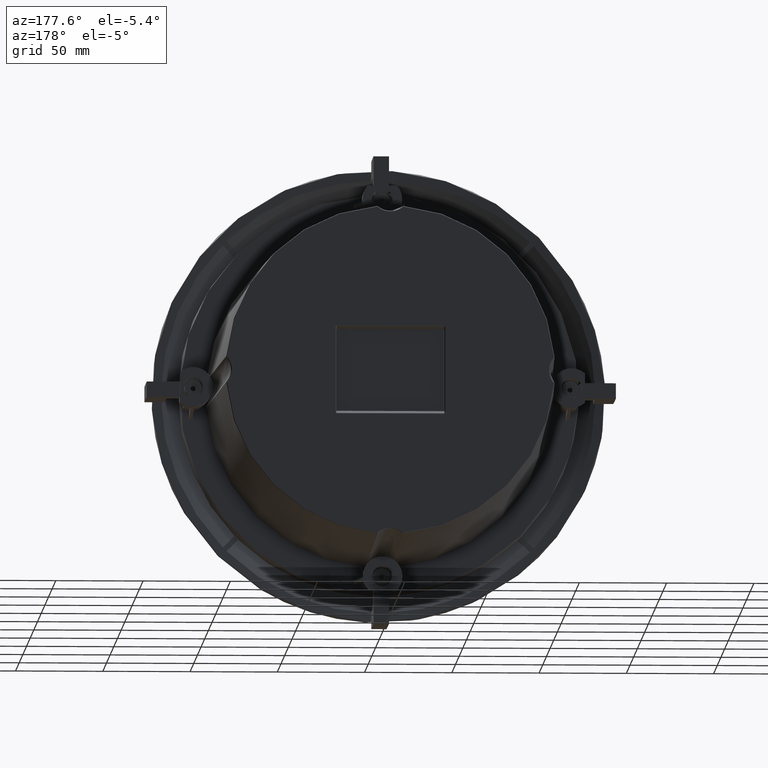
[diagram: clean part render]
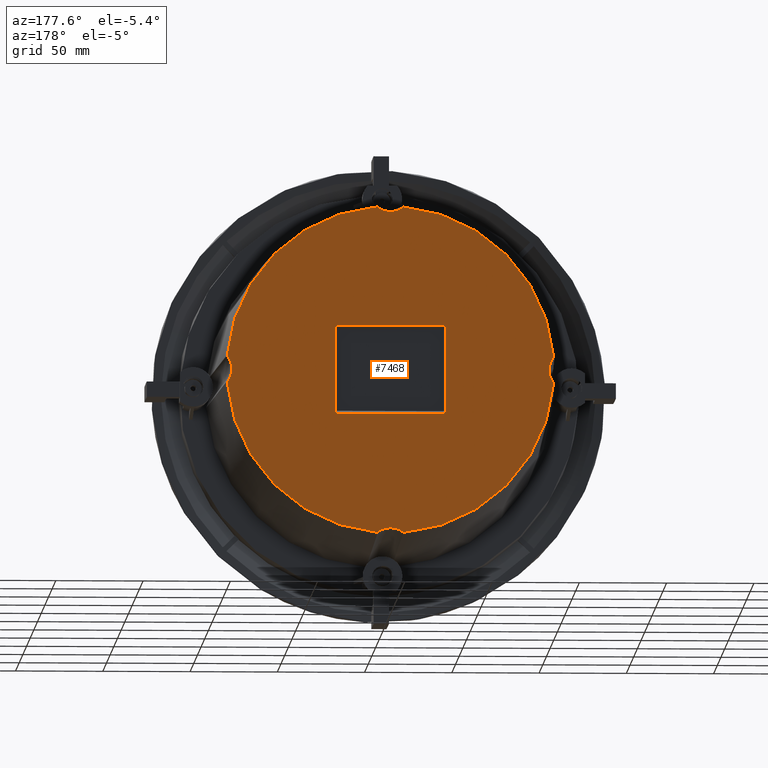
[diagram: same view with one face highlighted and labeled with its STEP entity id]
A machine part, auxiliary view. The second image highlights one B-rep face of the part: STEP entity #7468.
In plain terms, the highlighted planar face has unit normal (0, -1, 0).
Its self-contained STEP definition (entity closure, byte-faithful):
#197 = AXIS2_PLACEMENT_3D ( 'NONE', #6857, #18979, #10197 ) ;
#219 = CARTESIAN_POINT ( 'NONE',  ( -91.46539387544925148, 153.2000000000000739, -3.681440109933228122 ) ) ;
#427 = CARTESIAN_POINT ( 'NONE',  ( -92.77616737989194462, 153.1999999999999886, -6.432967408397320064 ) ) ;
#474 = CARTESIAN_POINT ( 'NONE',  ( 92.77616737988867612, 153.1999999999999886, 6.432967408398480025 ) ) ;
#540 = CARTESIAN_POINT ( 'NONE',  ( -93.36783217068743568, 153.2000000000000739, -7.271163528598670212 ) ) ;
#637 = CARTESIAN_POINT ( 'NONE',  ( -91.69059559155884642, 153.1999999999999886, 4.310998620416925498 ) ) ;
#672 = VERTEX_POINT ( 'NONE', #16595 ) ;
#762 = ORIENTED_EDGE ( 'NONE', *, *, #15835, .T. ) ;
#789 = CARTESIAN_POINT ( 'NONE',  ( -31.50000000000000000, 153.1999999999999886, 24.84591215304066836 ) ) ;
#862 = CARTESIAN_POINT ( 'NONE',  ( -93.15034997849915044, 153.1999999999999886, 7.005205598205839657 ) ) ;
#917 = CARTESIAN_POINT ( 'NONE',  ( -31.50000000000000711, 153.1999999999999886, -24.84591215304063638 ) ) ;
#953 = FACE_OUTER_BOUND ( 'NONE', #9231, .T. ) ;
#1071 = CARTESIAN_POINT ( 'NONE',  ( -5.260975928063964524, 153.2000000000000739, 92.09479735790252164 ) ) ;
#1259 = CARTESIAN_POINT ( 'NONE',  ( -6.443086712599098931, 153.2000000000000171, -92.76555303458462731 ) ) ;
#1384 = CARTESIAN_POINT ( 'NONE',  ( 93.58510959253142403, 153.1999999999999886, -7.536871046318520229 ) ) ;
#1419 = CARTESIAN_POINT ( 'NONE',  ( 90.96403128664297810, 153.2000000000000455, -1.363396200185605478 ) ) ;
#1472 = CARTESIAN_POINT ( 'NONE',  ( -93.58510959253139561, 153.1999999999999886, 7.536871046318957212 ) ) ;
#1527 = CARTESIAN_POINT ( 'NONE',  ( -7.536871046321066636, 153.1999999999999886, 93.58510959253106876 ) ) ;
#1704 = CARTESIAN_POINT ( 'NONE',  ( 31.08578643762690774, 153.1999999999999886, 25.30901699437495722 ) ) ;
#1920 = CARTESIAN_POINT ( 'NONE',  ( -92.09479735790532118, 153.1999999999999318, -5.260975928059998807 ) ) ;
#2387 = VERTEX_POINT ( 'NONE', #6798 ) ;
#2458 = VECTOR ( 'NONE', #4995, 1000.000000000000000 ) ;
#2564 = CARTESIAN_POINT ( 'NONE',  ( -91.82025499888871423, 153.1999999999999886, 4.629283016224395197 ) ) ;
#2568 = CARTESIAN_POINT ( 'NONE',  ( -93.58510959253140982, 153.1999999999999886, -7.536871046318957212 ) ) ;
#2670 = CARTESIAN_POINT ( 'NONE',  ( -92.76555303458583523, 153.1999999999999034, 6.443086712598468324 ) ) ;
#2949 = CARTESIAN_POINT ( 'NONE',  ( 5.260975928060313223, 153.2000000000000455, -92.09479735790202426 ) ) ;
#2965 = DIRECTION ( 'NONE',  ( 1.000000000000000000, 0.0000000000000000000, -9.893519695248395276E-17 ) ) ;
#2981 = CARTESIAN_POINT ( 'NONE',  ( 31.50000000000000355, 153.1999999999999886, -24.84591215304063638 ) ) ;
#2982 =( BOUNDED_CURVE ( )  B_SPLINE_CURVE ( 3, ( #4971, #1704, #3155, #20371 ),
 .UNSPECIFIED., .F., .T. ) 
 B_SPLINE_CURVE_WITH_KNOTS ( ( 4, 4 ),
 ( 0.0000000000000000000, 1.570796326794896558 ),
 .UNSPECIFIED. ) 
 CURVE ( )  GEOMETRIC_REPRESENTATION_ITEM ( )  RATIONAL_B_SPLINE_CURVE ( ( 1.000000000000000000, 0.8047378541243649375, 0.8047378541243649375, 1.000000000000000000 ) ) 
 REPRESENTATION_ITEM ( '' )  );
#2993 = CARTESIAN_POINT ( 'NONE',  ( -6.432967408400803500, 153.2000000000000455, 92.77616737988925877 ) ) ;
#3056 = CARTESIAN_POINT ( 'NONE',  ( 1.359038829745077726, 153.2000000000000455, -90.94906513824362548 ) ) ;
#3110 =( BOUNDED_CURVE ( )  B_SPLINE_CURVE ( 3, ( #6366, #10985, #917, #19623 ),
 .UNSPECIFIED., .F., .T. ) 
 B_SPLINE_CURVE_WITH_KNOTS ( ( 4, 4 ),
 ( 0.0000000000000000000, 1.570796326794896558 ),
 .UNSPECIFIED. ) 
 CURVE ( )  GEOMETRIC_REPRESENTATION_ITEM ( )  RATIONAL_B_SPLINE_CURVE ( ( 1.000000000000000000, 0.8047378541243649375, 0.8047378541243649375, 1.000000000000000000 ) ) 
 REPRESENTATION_ITEM ( '' )  );
#3155 = CARTESIAN_POINT ( 'NONE',  ( 31.50000000000000355, 153.1999999999999886, 24.84591215304066125 ) ) ;
#3159 = ORIENTED_EDGE ( 'NONE', *, *, #21268, .F. ) ;
#3261 = ORIENTED_EDGE ( 'NONE', *, *, #18969, .F. ) ;
#3271 = DIRECTION ( 'NONE',  ( -0.0000000000000000000, 1.000000000000000000, -0.0000000000000000000 ) ) ;
#3274 = CARTESIAN_POINT ( 'NONE',  ( 3.352165217724997870, 153.2000000000000171, -91.36373279981647499 ) ) ;
#3473 = CARTESIAN_POINT ( 'NONE',  ( -92.59629297434011619, 153.1999999999999886, -6.144880924089963337 ) ) ;
#3511 = EDGE_CURVE ( 'NONE', #5568, #10184, #6877, .T. ) ;
#3633 = LINE ( 'NONE', #11884, #2458 ) ;
#3700 = CARTESIAN_POINT ( 'NONE',  ( -91.12013762771064762, 153.1999999999999318, -2.360600208167746406 ) ) ;
#3747 = CARTESIAN_POINT ( 'NONE',  ( 93.58510959253142403, 153.1999999999999886, -7.536871046318520229 ) ) ;
#3808 = CARTESIAN_POINT ( 'NONE',  ( -90.96403128664925930, 153.1999999999999318, 1.363396200187846130 ) ) ;
#4582 = CARTESIAN_POINT ( 'NONE',  ( 7.536871046316185208, 153.1999999999999886, -93.58510959253142403 ) ) ;
#4597 = VERTEX_POINT ( 'NONE', #12790 ) ;
#4677 = AXIS2_PLACEMENT_3D ( 'NONE', #21009, #13962, #17407 ) ;
#4680 = CARTESIAN_POINT ( 'NONE',  ( -4.645709302369996685, 153.1999999999999886, 91.81092058149489787 ) ) ;
#4792 = CARTESIAN_POINT ( 'NONE',  ( -7.536871046316142575, 153.1999999999999886, -93.58510959253162298 ) ) ;
#4794 = CARTESIAN_POINT ( 'NONE',  ( 30.50000000000000355, 153.1999999999999886, -25.30901699437493590 ) ) ;
#4877 = CARTESIAN_POINT ( 'NONE',  ( 2.692485490587008368, 153.2000000000000171, -91.19144314204557134 ) ) ;
#4971 = CARTESIAN_POINT ( 'NONE',  ( 30.50000000000000000, 153.1999999999999886, 25.30901699437495722 ) ) ;
#4995 = DIRECTION ( 'NONE',  ( -1.000000000000000000, -0.0000000000000000000, 9.893519695248395276E-17 ) ) ;
#5019 = CARTESIAN_POINT ( 'NONE',  ( -3.352165217727373303, 153.1999999999999034, 91.36373279981899032 ) ) ;
#5031 = CARTESIAN_POINT ( 'NONE',  ( 92.59629297433636452, 153.2000000000000739, 6.144880924091374652 ) ) ;
#5050 = EDGE_CURVE ( 'NONE', #4597, #17335, #20559, .T. ) ;
#5097 = CARTESIAN_POINT ( 'NONE',  ( -7.005205598204589990, 153.1999999999999886, -93.15034997849802778 ) ) ;
#5418 = EDGE_LOOP ( 'NONE', ( #9335, #5700, #3261, #762, #3159, #18602, #16505, #21931 ) ) ;
#5458 = CARTESIAN_POINT ( 'NONE',  ( 91.17798814047417011, 153.2000000000000171, -2.697493732450597204 ) ) ;
#5494 = CARTESIAN_POINT ( 'NONE',  ( -31.50000000000001421, 153.1999999999999886, -24.99999999999998934 ) ) ;
#5515 = CARTESIAN_POINT ( 'NONE',  ( -90.90635966444361316, 153.1999999999999886, 0.6854634291690130388 ) ) ;
#5568 = VERTEX_POINT ( 'NONE', #15235 ) ;
#5638 = CARTESIAN_POINT ( 'NONE',  ( -91.17798814048003919, 153.1999999999999886, 2.697493732449655734 ) ) ;
#5700 = ORIENTED_EDGE ( 'NONE', *, *, #21103, .T. ) ;
#5703 = EDGE_CURVE ( 'NONE', #672, #4597, #11518, .T. ) ;
#5896 = ORIENTED_EDGE ( 'NONE', *, *, #5703, .T. ) ;
#6366 = CARTESIAN_POINT ( 'NONE',  ( -30.50000000000001421, 153.1999999999999886, -25.30901699437492880 ) ) ;
#6367 = CARTESIAN_POINT ( 'NONE',  ( 0.0000000000000000000, 153.1999999999999886, 1.283914725491116015E-14 ) ) ;
#6410 = CARTESIAN_POINT ( 'NONE',  ( -0.6835133497568752770, 153.1999999999999034, 90.89173487425982501 ) ) ;
#6478 = AXIS2_PLACEMENT_3D ( 'NONE', #21000, #7445, #8869 ) ;
#6574 = B_SPLINE_CURVE_WITH_KNOTS ( 'NONE', 3,
 ( #13682, #18613, #11519, #20275, #18390, #2949, #8494, #8377, #3274, #4877, #20381, #3056, #15120, #21944, #6600, #15352, #11759, #9854, #10176, #18844, #20491, #10063, #16691, #1259, #5097, #16804 ),
 .UNSPECIFIED., .F., .F.,
 ( 4, 2, 2, 2, 2, 2, 2, 2, 2, 2, 2, 2, 4 ),
 ( 1.332917992112502392E-16, 0.001029465366462058856, 0.002058930732923984139, 0.004117861465847837306, 0.005147326832309771262, 0.006176792198771704351, 0.008235722931695563589, 0.009265188298157490607, 0.01029465366461942109, 0.01235358439754327860, 0.01338304976400520908, 0.01441251513046713784, 0.01647144586339101616 ),
 .UNSPECIFIED. ) ;
#6600 = CARTESIAN_POINT ( 'NONE',  ( -0.6854634291648693534, 153.2000000000000739, -90.90635966443979044 ) ) ;
#6651 = CARTESIAN_POINT ( 'NONE',  ( 91.81092058149191359, 153.2000000000000455, 4.645709302368325133 ) ) ;
#6663 = CARTESIAN_POINT ( 'NONE',  ( 31.50000000000000711, 153.1999999999999886, 25.00000000000001066 ) ) ;
#6798 = CARTESIAN_POINT ( 'NONE',  ( -7.536871046321066636, 153.1999999999999886, 93.58510959253106876 ) ) ;
#6857 = CARTESIAN_POINT ( 'NONE',  ( 0.0000000000000000000, 153.1999999999999886, 1.283914725491116015E-14 ) ) ;
#6877 =( BOUNDED_CURVE ( )  B_SPLINE_CURVE ( 3, ( #8944, #789, #14134, #15794 ),
 .UNSPECIFIED., .F., .T. ) 
 B_SPLINE_CURVE_WITH_KNOTS ( ( 4, 4 ),
 ( 1.570796326794893449, 3.141592653589793116 ),
 .UNSPECIFIED. ) 
 CURVE ( )  GEOMETRIC_REPRESENTATION_ITEM ( )  RATIONAL_B_SPLINE_CURVE ( ( 1.000000000000000000, 0.8047378541243643824, 0.8047378541243643824, 1.000000000000000000 ) ) 
 REPRESENTATION_ITEM ( '' )  );
#6879 = EDGE_CURVE ( 'NONE', #12620, #7544, #6574, .T. ) ;
#7071 = VECTOR ( 'NONE', #18335, 1000.000000000000000 ) ;
#7181 = CARTESIAN_POINT ( 'NONE',  ( 91.82025499888693787, 153.1999999999999886, -4.629283016234096770 ) ) ;
#7218 = LINE ( 'NONE', #5494, #18772 ) ;
#7226 = ORIENTED_EDGE ( 'NONE', *, *, #18039, .T. ) ;
#7275 = CARTESIAN_POINT ( 'NONE',  ( 0.0000000000000000000, 153.1999999999999886, 1.283914725491116015E-14 ) ) ;
#7406 = CARTESIAN_POINT ( 'NONE',  ( 92.09479735790048949, 153.2000000000000171, 5.260975928062033624 ) ) ;
#7445 = DIRECTION ( 'NONE',  ( -0.0000000000000000000, 1.000000000000000000, -0.0000000000000000000 ) ) ;
#7468 = ADVANCED_FACE ( 'NONE', ( #953, #11343 ), #7959, .F. ) ;
#7544 = VERTEX_POINT ( 'NONE', #4792 ) ;
#7552 = CIRCLE ( 'NONE', #6478, 93.88810980425007813 ) ;
#7959 = PLANE ( 'NONE',  #197 ) ;
#7970 = CARTESIAN_POINT ( 'NONE',  ( 7.536871046321052425, 153.1999999999999886, 93.58510959253121086 ) ) ;
#8076 = CARTESIAN_POINT ( 'NONE',  ( 30.50000000000000355, 153.1999999999999886, -25.30901699437493590 ) ) ;
#8098 = CARTESIAN_POINT ( 'NONE',  ( -31.50000000000001421, 153.1999999999999886, -24.19098300562503567 ) ) ;
#8195 = CARTESIAN_POINT ( 'NONE',  ( 1.363396200184100904, 153.1999999999999034, 90.96403128664883297 ) ) ;
#8377 = CARTESIAN_POINT ( 'NONE',  ( 3.681440109935348648, 153.2000000000000171, -91.46539387544635247 ) ) ;
#8415 = CARTESIAN_POINT ( 'NONE',  ( -3.681440109937941685, 153.2000000000000455, 91.46539387544859778 ) ) ;
#8422 = CARTESIAN_POINT ( 'NONE',  ( 93.16169503917225825, 153.1999999999999602, 6.995857624617297432 ) ) ;
#8494 = CARTESIAN_POINT ( 'NONE',  ( 4.645709302366810789, 153.2000000000000171, -91.81092058149368995 ) ) ;
#8797 = CARTESIAN_POINT ( 'NONE',  ( -91.81092058149684476, 153.2000000000000739, -4.645709302365943039 ) ) ;
#8869 = DIRECTION ( 'NONE',  ( -7.632783294297952201E-16, 0.0000000000000000000, -1.000000000000000000 ) ) ;
#8904 = CARTESIAN_POINT ( 'NONE',  ( -90.89172756736068948, 153.1999999999999886, 0.3416272814444613615 ) ) ;
#8944 = CARTESIAN_POINT ( 'NONE',  ( -31.50000000000000000, 153.1999999999999886, 24.19098300562506410 ) ) ;
#8975 = B_SPLINE_CURVE_WITH_KNOTS ( 'NONE', 3,
 ( #1527, #10209, #20421, #2993, #9894, #1071, #4680, #8415, #5019, #13152, #21987, #15159, #6410, #15051, #18651, #8195, #11453, #16960, #20088, #11798, #20198, #21873, #11901, #16623, #18766, #7970 ),
 .UNSPECIFIED., .F., .F.,
 ( 4, 2, 2, 2, 2, 2, 2, 2, 2, 2, 2, 2, 4 ),
 ( 1.186765142507825344E-16, 0.001029465366462455457, 0.002058930732924792520, 0.004117861465849464477, 0.005147326832311793082, 0.006176792198774120821, 0.008235722931698779767, 0.009265188298161109240, 0.01029465366462343871, 0.01235358439754809592, 0.01338304976401041846, 0.01441251513047273752, 0.01647144586339737912 ),
 .UNSPECIFIED. ) ;
#9192 = CIRCLE ( 'NONE', #9896, 93.88810980425007813 ) ;
#9231 = EDGE_LOOP ( 'NONE', ( #11895, #16791, #22012, #19545, #17130, #5896, #14831, #7226 ) ) ;
#9335 = ORIENTED_EDGE ( 'NONE', *, *, #14646, .F. ) ;
#9682 = CARTESIAN_POINT ( 'NONE',  ( -91.34767788594537308, 153.2000000000000171, 3.350699575648344641 ) ) ;
#9854 = CARTESIAN_POINT ( 'NONE',  ( -2.697493732449399051, 153.2000000000000739, -91.17798814047633016 ) ) ;
#9894 = CARTESIAN_POINT ( 'NONE',  ( -6.144880924093585328, 153.2000000000001023, 92.59629297433727402 ) ) ;
#9896 = AXIS2_PLACEMENT_3D ( 'NONE', #7275, #14122, #10739 ) ;
#9935 = EDGE_CURVE ( 'NONE', #7544, #19662, #14435, .T. ) ;
#10063 = CARTESIAN_POINT ( 'NONE',  ( -5.251739651377627993, 153.1999999999999886, -92.10606032398831644 ) ) ;
#10108 = CARTESIAN_POINT ( 'NONE',  ( 90.89172756735457881, 153.1999999999999318, -0.3416272814408198855 ) ) ;
#10176 = CARTESIAN_POINT ( 'NONE',  ( -3.350699575650491369, 153.1999999999999602, -91.34767788594218985 ) ) ;
#10184 = VERTEX_POINT ( 'NONE', #14869 ) ;
#10197 = DIRECTION ( 'NONE',  ( 1.249000902703301108E-16, 0.0000000000000000000, -1.000000000000000000 ) ) ;
#10209 = CARTESIAN_POINT ( 'NONE',  ( -7.271163528601484849, 153.2000000000000171, 93.36783217068644092 ) ) ;
#10593 = CARTESIAN_POINT ( 'NONE',  ( -90.89173487425924236, 153.1999999999999602, -0.6835133497525834878 ) ) ;
#10710 = CARTESIAN_POINT ( 'NONE',  ( -91.00702139104821242, 153.1999999999999886, 1.699238161019435145 ) ) ;
#10739 = DIRECTION ( 'NONE',  ( 1.249000902703301108E-16, 0.0000000000000000000, -1.000000000000000000 ) ) ;
#10757 = CARTESIAN_POINT ( 'NONE',  ( 93.36783217068659724, 153.2000000000000739, 7.271163528599018377 ) ) ;
#10985 = CARTESIAN_POINT ( 'NONE',  ( -31.08578643762691129, 153.1999999999999886, -25.30901699437492880 ) ) ;
#11002 = VECTOR ( 'NONE', #2965, 1000.000000000000000 ) ;
#11046 = EDGE_CURVE ( 'NONE', #5568, #11865, #7218, .T. ) ;
#11233 = CARTESIAN_POINT ( 'NONE',  ( 31.50000000000000000, 153.1999999999999886, -24.19098300562504278 ) ) ;
#11343 = FACE_BOUND ( 'NONE', #5418, .T. ) ;
#11453 = CARTESIAN_POINT ( 'NONE',  ( 1.699238161016642046, 153.2000000000000739, 91.00702139104767241 ) ) ;
#11518 = CIRCLE ( 'NONE', #4677, 93.88810980425007813 ) ;
#11519 = CARTESIAN_POINT ( 'NONE',  ( 6.995857624615009485, 153.1999999999999602, -93.16169503917284089 ) ) ;
#11692 = CARTESIAN_POINT ( 'NONE',  ( 90.89173487425343012, 153.1999999999999602, 0.6835133497554631843 ) ) ;
#11759 = CARTESIAN_POINT ( 'NONE',  ( -1.699238161016726867, 153.2000000000000739, -91.00702139104423338 ) ) ;
#11798 = CARTESIAN_POINT ( 'NONE',  ( 4.310998620427443306, 153.2000000000000171, 91.69059559155971328 ) ) ;
#11865 = VERTEX_POINT ( 'NONE', #8098 ) ;
#11884 = CARTESIAN_POINT ( 'NONE',  ( 2.503952581012249275E-15, 153.1999999999999886, 25.30901699437496077 ) ) ;
#11895 = ORIENTED_EDGE ( 'NONE', *, *, #6879, .T. ) ;
#11901 = CARTESIAN_POINT ( 'NONE',  ( 5.555205557444606868, 153.1999999999999602, 92.26169819272533346 ) ) ;
#11907 = CARTESIAN_POINT ( 'NONE',  ( 91.46539387544426347, 153.1999999999999602, 3.681440109936526373 ) ) ;
#12277 = CARTESIAN_POINT ( 'NONE',  ( -91.19144314204865509, 153.1999999999999886, -2.692485490584830998 ) ) ;
#12325 = CARTESIAN_POINT ( 'NONE',  ( 92.76555303458356150, 153.2000000000000455, -6.443086712601163057 ) ) ;
#12600 = VERTEX_POINT ( 'NONE', #21570 ) ;
#12620 = VERTEX_POINT ( 'NONE', #4582 ) ;
#12790 = CARTESIAN_POINT ( 'NONE',  ( 93.58510959253125350, 153.1999999999999886, 7.536871046318583289 ) ) ;
#13152 = CARTESIAN_POINT ( 'NONE',  ( -2.692485490589001440, 153.1999999999999602, 91.19144314204862667 ) ) ;
#13340 = DIRECTION ( 'NONE',  ( 1.249000902703301108E-16, 0.0000000000000000000, -1.000000000000000000 ) ) ;
#13502 = CARTESIAN_POINT ( 'NONE',  ( 91.00702139104200228, 153.2000000000000739, -1.699238161017843751 ) ) ;
#13672 =( BOUNDED_CURVE ( )  B_SPLINE_CURVE ( 3, ( #11233, #2981, #19658, #8076 ),
 .UNSPECIFIED., .F., .T. ) 
 B_SPLINE_CURVE_WITH_KNOTS ( ( 4, 4 ),
 ( 1.570796326794896558, 3.141592653589793116 ),
 .UNSPECIFIED. ) 
 CURVE ( )  GEOMETRIC_REPRESENTATION_ITEM ( )  RATIONAL_B_SPLINE_CURVE ( ( 1.000000000000000000, 0.8047378541243649375, 0.8047378541243649375, 1.000000000000000000 ) ) 
 REPRESENTATION_ITEM ( '' )  );
#13682 = CARTESIAN_POINT ( 'NONE',  ( 7.536871046316185208, 153.1999999999999886, -93.58510959253142403 ) ) ;
#13962 = DIRECTION ( 'NONE',  ( -0.0000000000000000000, 1.000000000000000000, -0.0000000000000000000 ) ) ;
#13985 = CARTESIAN_POINT ( 'NONE',  ( -91.36373279981943085, 153.1999999999999886, -3.352165217722787194 ) ) ;
#14031 = CARTESIAN_POINT ( 'NONE',  ( 92.10606032398641219, 153.1999999999999886, -5.251739651378692919 ) ) ;
#14049 = CARTESIAN_POINT ( 'NONE',  ( -30.50000000000001421, 153.1999999999999886, -25.30901699437492880 ) ) ;
#14122 = DIRECTION ( 'NONE',  ( -0.0000000000000000000, 1.000000000000000000, -0.0000000000000000000 ) ) ;
#14134 = CARTESIAN_POINT ( 'NONE',  ( -31.08578643762690774, 153.1999999999999886, 25.30901699437497143 ) ) ;
#14435 = CIRCLE ( 'NONE', #17646, 93.88810980425007813 ) ;
#14646 = EDGE_CURVE ( 'NONE', #20959, #11865, #3110, .T. ) ;
#14831 = ORIENTED_EDGE ( 'NONE', *, *, #5050, .T. ) ;
#14869 = CARTESIAN_POINT ( 'NONE',  ( -30.50000000000000355, 153.1999999999999886, 25.30901699437496433 ) ) ;
#15051 = CARTESIAN_POINT ( 'NONE',  ( 0.3416272814390902690, 153.1999999999999034, 90.89172756736086001 ) ) ;
#15120 = CARTESIAN_POINT ( 'NONE',  ( 0.6835133497556605819, 153.2000000000000739, -90.89173487425587439 ) ) ;
#15159 = CARTESIAN_POINT ( 'NONE',  ( -1.359038829746468169, 153.2000000000000455, 90.94906513824746241 ) ) ;
#15235 = CARTESIAN_POINT ( 'NONE',  ( -31.50000000000000000, 153.1999999999999886, 24.19098300562506410 ) ) ;
#15352 = CARTESIAN_POINT ( 'NONE',  ( -1.363396200184542106, 153.2000000000001307, -90.96403128664530868 ) ) ;
#15586 = EDGE_CURVE ( 'NONE', #20317, #2387, #9192, .T. ) ;
#15634 = DIRECTION ( 'NONE',  ( -1.526556658859588764E-16, -0.0000000000000000000, -1.000000000000000000 ) ) ;
#15707 = CARTESIAN_POINT ( 'NONE',  ( 91.12013762770516223, 153.2000000000000171, 2.360600208170525960 ) ) ;
#15737 = EDGE_CURVE ( 'NONE', #19662, #20317, #21902, .T. ) ;
#15794 = CARTESIAN_POINT ( 'NONE',  ( -30.50000000000000355, 153.1999999999999886, 25.30901699437496433 ) ) ;
#15835 = EDGE_CURVE ( 'NONE', #20861, #12600, #20004, .T. ) ;
#15867 = CARTESIAN_POINT ( 'NONE',  ( -93.58510959253140982, 153.1999999999999886, -7.536871046318957212 ) ) ;
#16505 = ORIENTED_EDGE ( 'NONE', *, *, #3511, .F. ) ;
#16519 = CARTESIAN_POINT ( 'NONE',  ( -92.10606032398858645, 153.1999999999999886, 5.251739651371688744 ) ) ;
#16595 = CARTESIAN_POINT ( 'NONE',  ( 7.536871046321052425, 153.1999999999999886, 93.58510959253121086 ) ) ;
#16623 = CARTESIAN_POINT ( 'NONE',  ( 6.443086712603741439, 153.1999999999999886, 92.76555303458431467 ) ) ;
#16691 = CARTESIAN_POINT ( 'NONE',  ( -5.555205557440118014, 153.1999999999999886, -92.26169819272473660 ) ) ;
#16738 = CARTESIAN_POINT ( 'NONE',  ( 31.50000000000000000, 153.1999999999999886, -24.19098300562504278 ) ) ;
#16791 = ORIENTED_EDGE ( 'NONE', *, *, #9935, .T. ) ;
#16804 = CARTESIAN_POINT ( 'NONE',  ( -7.536871046316142575, 153.1999999999999886, -93.58510959253162298 ) ) ;
#16817 = LINE ( 'NONE', #18407, #11002 ) ;
#16849 = CARTESIAN_POINT ( 'NONE',  ( 93.58510959253125350, 153.1999999999999886, 7.536871046318583289 ) ) ;
#16960 = CARTESIAN_POINT ( 'NONE',  ( 2.697493732450435555, 153.2000000000001307, 91.17798814047922917 ) ) ;
#16967 = CARTESIAN_POINT ( 'NONE',  ( 91.69059559155579109, 153.2000000000001023, -4.310998620424402183 ) ) ;
#17130 = ORIENTED_EDGE ( 'NONE', *, *, #20823, .T. ) ;
#17335 = VERTEX_POINT ( 'NONE', #1384 ) ;
#17407 = DIRECTION ( 'NONE',  ( 1.249000902703301108E-16, 0.0000000000000000000, -1.000000000000000000 ) ) ;
#17445 = EDGE_CURVE ( 'NONE', #19893, #10184, #3633, .T. ) ;
#17540 = CARTESIAN_POINT ( 'NONE',  ( -93.16169503917406303, 153.1999999999999602, -6.995857624616652615 ) ) ;
#17646 = AXIS2_PLACEMENT_3D ( 'NONE', #6367, #3271, #13340 ) ;
#18039 = EDGE_CURVE ( 'NONE', #17335, #12620, #7552, .T. ) ;
#18335 = DIRECTION ( 'NONE',  ( 1.387778780781490049E-17, -0.0000000000000000000, 1.000000000000000000 ) ) ;
#18390 = CARTESIAN_POINT ( 'NONE',  ( 6.144880924089339835, 153.2000000000000739, -92.59629297433747297 ) ) ;
#18407 = CARTESIAN_POINT ( 'NONE',  ( -2.503952581012249275E-15, 153.1999999999999886, -25.30901699437493235 ) ) ;
#18556 = CARTESIAN_POINT ( 'NONE',  ( 90.90635966443745986, 153.2000000000000455, -0.6854634291657049072 ) ) ;
#18602 = ORIENTED_EDGE ( 'NONE', *, *, #17445, .T. ) ;
#18613 = CARTESIAN_POINT ( 'NONE',  ( 7.271163528596654935, 153.2000000000000171, -93.36783217068698093 ) ) ;
#18651 = CARTESIAN_POINT ( 'NONE',  ( 0.6854634291638995736, 153.1999999999999318, 90.90635966444358473 ) ) ;
#18657 = CARTESIAN_POINT ( 'NONE',  ( 91.19144314204331181, 153.1999999999999318, 2.692485490587709585 ) ) ;
#18766 = CARTESIAN_POINT ( 'NONE',  ( 7.005205598209384377, 153.1999999999999886, 93.15034997849741671 ) ) ;
#18772 = VECTOR ( 'NONE', #15634, 1000.000000000000000 ) ;
#18776 = CARTESIAN_POINT ( 'NONE',  ( 90.94906513824119543, 153.2000000000000739, 1.359038829745149668 ) ) ;
#18844 = CARTESIAN_POINT ( 'NONE',  ( -4.310998620423725392, 153.1999999999999034, -91.69059559155783745 ) ) ;
#18969 = EDGE_CURVE ( 'NONE', #20861, #19094, #13672, .T. ) ;
#18979 = DIRECTION ( 'NONE',  ( 0.0000000000000000000, -1.000000000000000000, 0.0000000000000000000 ) ) ;
#19094 = VERTEX_POINT ( 'NONE', #4794 ) ;
#19183 = CARTESIAN_POINT ( 'NONE',  ( 93.15034997849744514, 153.2000000000000455, -7.005205598206882378 ) ) ;
#19545 = ORIENTED_EDGE ( 'NONE', *, *, #15586, .T. ) ;
#19623 = CARTESIAN_POINT ( 'NONE',  ( -31.50000000000001421, 153.1999999999999886, -24.19098300562503567 ) ) ;
#19658 = CARTESIAN_POINT ( 'NONE',  ( 31.08578643762690774, 153.1999999999999886, -25.30901699437493590 ) ) ;
#19662 = VERTEX_POINT ( 'NONE', #2568 ) ;
#19893 = VERTEX_POINT ( 'NONE', #20674 ) ;
#20004 = LINE ( 'NONE', #6663, #7071 ) ;
#20088 = CARTESIAN_POINT ( 'NONE',  ( 3.350699575652483997, 153.1999999999999886, 91.34767788594456306 ) ) ;
#20198 = CARTESIAN_POINT ( 'NONE',  ( 4.629283016238214366, 153.1999999999999886, 91.82025499889098796 ) ) ;
#20206 = CARTESIAN_POINT ( 'NONE',  ( 91.36373279981438600, 153.1999999999999886, 3.352165217726017943 ) ) ;
#20275 = CARTESIAN_POINT ( 'NONE',  ( 6.432967408396373266, 153.1999999999999318, -92.77616737988964246 ) ) ;
#20317 = VERTEX_POINT ( 'NONE', #1472 ) ;
#20328 = CARTESIAN_POINT ( 'NONE',  ( 91.34767788594012927, 153.2000000000001023, -3.350699575651573170 ) ) ;
#20371 = CARTESIAN_POINT ( 'NONE',  ( 31.50000000000000711, 153.1999999999999886, 24.19098300562506054 ) ) ;
#20381 = CARTESIAN_POINT ( 'NONE',  ( 2.360600208169994385, 153.2000000000000171, -91.12013762770746439 ) ) ;
#20421 = CARTESIAN_POINT ( 'NONE',  ( -6.995857624619720383, 153.2000000000000739, 93.16169503917228667 ) ) ;
#20491 = CARTESIAN_POINT ( 'NONE',  ( -4.629283016233726400, 153.2000000000000171, -91.82025499888921161 ) ) ;
#20559 = B_SPLINE_CURVE_WITH_KNOTS ( 'NONE', 3,
 ( #16849, #10757, #8422, #474, #5031, #7406, #6651, #11907, #20206, #18657, #15707, #18776, #11692, #10108, #18556, #1419, #13502, #5458, #20328, #16967, #7181, #14031, #20855, #12325, #19183, #3747 ),
 .UNSPECIFIED., .F., .F.,
 ( 4, 2, 2, 2, 2, 2, 2, 2, 2, 2, 2, 2, 4 ),
 ( 1.332917992112502392E-16, 0.001029465366462530484, 0.002058930732924927395, 0.004117861465849702134, 0.005147326832312096659, 0.006176792198774492051, 0.008235722931699289776, 0.009265188298161688638, 0.01029465366462408750, 0.01235358439754888349, 0.01338304976401128235, 0.01441251513047368121, 0.01647144586339845812 ),
 .UNSPECIFIED. ) ;
#20674 = CARTESIAN_POINT ( 'NONE',  ( 30.50000000000000000, 153.1999999999999886, 25.30901699437495722 ) ) ;
#20823 = EDGE_CURVE ( 'NONE', #2387, #672, #8975, .T. ) ;
#20855 = CARTESIAN_POINT ( 'NONE',  ( 92.26169819272305972, 153.2000000000000455, -5.555205557441482256 ) ) ;
#20861 = VERTEX_POINT ( 'NONE', #16738 ) ;
#20921 = CARTESIAN_POINT ( 'NONE',  ( -90.94906513824695082, 153.1999999999999602, -1.359038829742480248 ) ) ;
#20959 = VERTEX_POINT ( 'NONE', #14049 ) ;
#21000 = CARTESIAN_POINT ( 'NONE',  ( 0.0000000000000000000, 153.1999999999999886, 1.283914725491116015E-14 ) ) ;
#21009 = CARTESIAN_POINT ( 'NONE',  ( 0.0000000000000000000, 153.1999999999999886, 1.283914725491116015E-14 ) ) ;
#21103 = EDGE_CURVE ( 'NONE', #20959, #19094, #16817, .T. ) ;
#21268 = EDGE_CURVE ( 'NONE', #19893, #12600, #2982, .T. ) ;
#21357 = CARTESIAN_POINT ( 'NONE',  ( -93.58510959253139561, 153.1999999999999886, 7.536871046318957212 ) ) ;
#21465 = CARTESIAN_POINT ( 'NONE',  ( -92.26169819272539030, 153.1999999999999034, 5.555205557435618502 ) ) ;
#21570 = CARTESIAN_POINT ( 'NONE',  ( 31.50000000000000711, 153.1999999999999886, 24.19098300562506054 ) ) ;
#21873 = CARTESIAN_POINT ( 'NONE',  ( 5.251739651382078655, 153.2000000000000171, 92.10606032398931120 ) ) ;
#21902 = B_SPLINE_CURVE_WITH_KNOTS ( 'NONE', 3,
 ( #15867, #540, #17540, #427, #3473, #1920, #8797, #219, #13985, #12277, #3700, #20921, #10593, #8904, #5515, #3808, #10710, #5638, #9682, #637, #2564, #16519, #21465, #2670, #862, #21357 ),
 .UNSPECIFIED., .F., .F.,
 ( 4, 2, 2, 2, 2, 2, 2, 2, 2, 2, 2, 2, 4 ),
 ( 0.0000000000000000000, 0.001029465366462416860, 0.002058930732924833720, 0.004117861465849667439, 0.005147326832312077577, 0.006176792198774486847, 0.008235722931699314062, 0.009265188298161728536, 0.01029465366462414128, 0.01235358439754896849, 0.01338304976401138817, 0.01441251513047380611, 0.01647144586339864200 ),
 .UNSPECIFIED. ) ;
#21931 = ORIENTED_EDGE ( 'NONE', *, *, #11046, .T. ) ;
#21944 = CARTESIAN_POINT ( 'NONE',  ( -0.3416272814401943858, 153.2000000000000455, -90.89172756735693781 ) ) ;
#21987 = CARTESIAN_POINT ( 'NONE',  ( -2.360600208171809378, 153.2000000000000455, 91.12013762771077552 ) ) ;
#22012 = ORIENTED_EDGE ( 'NONE', *, *, #15737, .T. ) ;